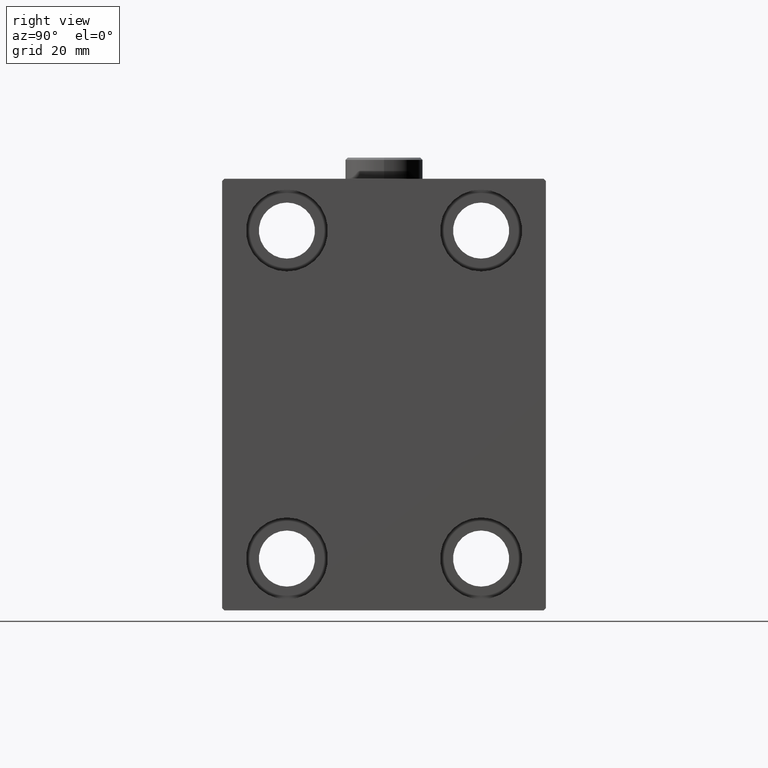
[diagram: clean part render]
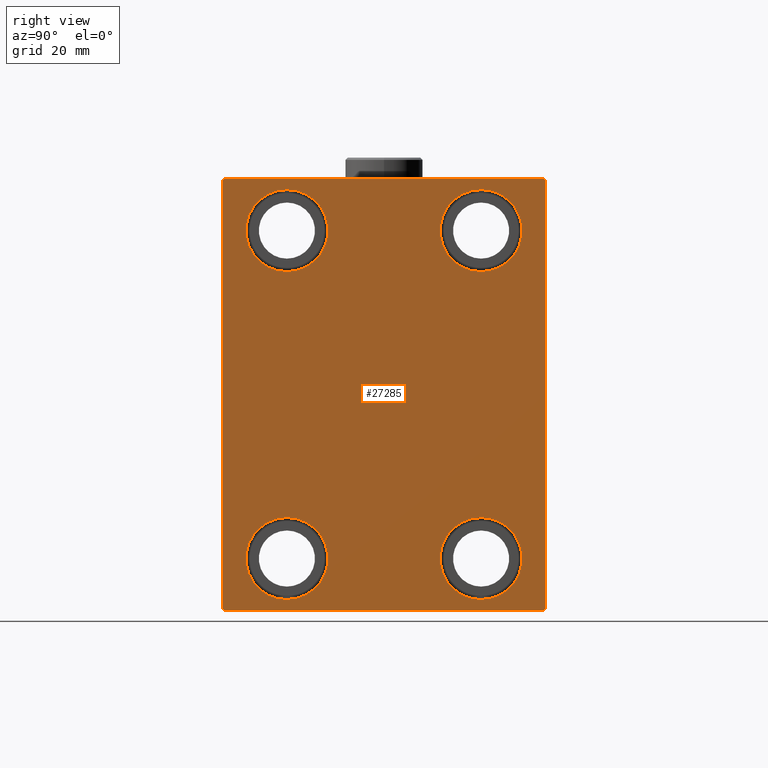
[diagram: same view with one face highlighted and labeled with its STEP entity id]
A machine part, right view. The second image highlights one B-rep face of the part: STEP entity #27285.
In plain terms, the highlighted planar face has unit normal (1, 0, 0).
Its self-contained STEP definition (entity closure, byte-faithful):
#112 = VERTEX_POINT ( 'NONE', #30659 ) ;
#560 = DIRECTION ( 'NONE',  ( -1.000000000000000000, -0.000000000000000000, -0.000000000000000000 ) ) ;
#1087 = AXIS2_PLACEMENT_3D ( 'NONE', #18456, #560, #39306 ) ;
#1279 = AXIS2_PLACEMENT_3D ( 'NONE', #21430, #35413, #22129 ) ;
#1366 = EDGE_CURVE ( 'NONE', #28657, #34508, #4952, .T. ) ;
#1602 = EDGE_LOOP ( 'NONE', ( #8763, #19736 ) ) ;
#2186 = EDGE_LOOP ( 'NONE', ( #13528, #32838, #13001, #43481, #29658, #16053, #27438, #22816 ) ) ;
#2205 = CIRCLE ( 'NONE', #12477, 9.500000000000001776 ) ;
#2224 = EDGE_CURVE ( 'NONE', #32476, #22741, #4931, .T. ) ;
#2393 = DIRECTION ( 'NONE',  ( 0.000000000000000000, 0.000000000000000000, 1.000000000000000000 ) ) ;
#2905 = DIRECTION ( 'NONE',  ( 0.000000000000000000, 0.000000000000000000, 1.000000000000000000 ) ) ;
#2932 = EDGE_CURVE ( 'NONE', #34945, #21055, #25174, .T. ) ;
#3060 = VERTEX_POINT ( 'NONE', #12746 ) ;
#3289 = AXIS2_PLACEMENT_3D ( 'NONE', #29464, #36555, #33130 ) ;
#3398 = CARTESIAN_POINT ( 'NONE',  ( 98.00000000000000000, 37.49999999999999289, 49.50000000000000000 ) ) ;
#3482 = VECTOR ( 'NONE', #42978, 1000.000000000000000 ) ;
#4188 = FACE_BOUND ( 'NONE', #23845, .T. ) ;
#4430 = DIRECTION ( 'NONE',  ( -0.000000000000000000, 0.7071067811865474617, 0.7071067811865474617 ) ) ;
#4711 = CARTESIAN_POINT ( 'NONE',  ( 98.00000000000000000, -22.49999999999999645, 37.99999999999999289 ) ) ;
#4931 = LINE ( 'NONE', #35647, #3482 ) ;
#4952 = CIRCLE ( 'NONE', #1279, 9.500000000000001776 ) ;
#5554 = CARTESIAN_POINT ( 'NONE',  ( 98.00000000000000000, -37.50000000000000711, -49.49999999999999289 ) ) ;
#7367 = CARTESIAN_POINT ( 'NONE',  ( 98.00000000000000000, 37.49999999999999289, 50.00000000000000711 ) ) ;
#7510 = EDGE_CURVE ( 'NONE', #33628, #39055, #29377, .T. ) ;
#7623 = CIRCLE ( 'NONE', #13468, 9.500000000000001776 ) ;
#7625 = FACE_OUTER_BOUND ( 'NONE', #2186, .T. ) ;
#7821 = EDGE_CURVE ( 'NONE', #21055, #3060, #34008, .T. ) ;
#8126 = CIRCLE ( 'NONE', #11790, 9.500000000000001776 ) ;
#8763 = ORIENTED_EDGE ( 'NONE', *, *, #43242, .T. ) ;
#9125 = DIRECTION ( 'NONE',  ( -1.000000000000000000, -0.000000000000000000, -0.000000000000000000 ) ) ;
#9237 = EDGE_CURVE ( 'NONE', #39055, #32476, #16911, .T. ) ;
#9699 = VERTEX_POINT ( 'NONE', #26675 ) ;
#9778 = CARTESIAN_POINT ( 'NONE',  ( 98.00000000000000000, -22.50000000000000711, -47.49999999999999289 ) ) ;
#11211 = ORIENTED_EDGE ( 'NONE', *, *, #1366, .T. ) ;
#11396 = EDGE_CURVE ( 'NONE', #28223, #112, #8126, .T. ) ;
#11501 = ORIENTED_EDGE ( 'NONE', *, *, #41345, .T. ) ;
#11718 = AXIS2_PLACEMENT_3D ( 'NONE', #44103, #12485, #2393 ) ;
#11790 = AXIS2_PLACEMENT_3D ( 'NONE', #26980, #34319, #2905 ) ;
#12477 = AXIS2_PLACEMENT_3D ( 'NONE', #4711, #18685, #42279 ) ;
#12485 = DIRECTION ( 'NONE',  ( -1.000000000000000000, -0.000000000000000000, -0.000000000000000000 ) ) ;
#12746 = CARTESIAN_POINT ( 'NONE',  ( 98.00000000000000000, 36.99999999999999289, 50.00000000000000711 ) ) ;
#13001 = ORIENTED_EDGE ( 'NONE', *, *, #7510, .T. ) ;
#13468 = AXIS2_PLACEMENT_3D ( 'NONE', #26325, #40298, #21354 ) ;
#13528 = ORIENTED_EDGE ( 'NONE', *, *, #21857, .T. ) ;
#14256 = FACE_BOUND ( 'NONE', #1602, .T. ) ;
#14281 = VECTOR ( 'NONE', #25760, 1000.000000000000114 ) ;
#15342 = ORIENTED_EDGE ( 'NONE', *, *, #31131, .T. ) ;
#15997 = CARTESIAN_POINT ( 'NONE',  ( 98.00000000000000000, -22.50000000000000711, -37.99999999999999289 ) ) ;
#16053 = ORIENTED_EDGE ( 'NONE', *, *, #27640, .T. ) ;
#16572 = DIRECTION ( 'NONE',  ( -0.000000000000000000, -0.7071067811865425767, 0.7071067811865525687 ) ) ;
#16911 = LINE ( 'NONE', #17356, #30752 ) ;
#17356 = CARTESIAN_POINT ( 'NONE',  ( 98.00000000000000000, -43.50000000000000000, -43.50000000000000000 ) ) ;
#17982 = CARTESIAN_POINT ( 'NONE',  ( 98.00000000000000000, -36.99999999999999289, -50.00000000000000711 ) ) ;
#18159 = DIRECTION ( 'NONE',  ( 0.000000000000000000, 0.000000000000000000, -1.000000000000000000 ) ) ;
#18456 = CARTESIAN_POINT ( 'NONE',  ( 98.00000000000000000, 22.50000000000000355, 37.99999999999999289 ) ) ;
#18685 = DIRECTION ( 'NONE',  ( -1.000000000000000000, -0.000000000000000000, -0.000000000000000000 ) ) ;
#18788 = VECTOR ( 'NONE', #4430, 1000.000000000000114 ) ;
#19260 = EDGE_CURVE ( 'NONE', #26778, #9699, #30364, .T. ) ;
#19388 = EDGE_CURVE ( 'NONE', #41715, #21252, #35544, .T. ) ;
#19736 = ORIENTED_EDGE ( 'NONE', *, *, #11396, .T. ) ;
#19762 = EDGE_CURVE ( 'NONE', #29072, #33628, #36942, .T. ) ;
#21055 = VERTEX_POINT ( 'NONE', #3398 ) ;
#21141 = FACE_BOUND ( 'NONE', #21319, .T. ) ;
#21252 = VERTEX_POINT ( 'NONE', #9778 ) ;
#21319 = EDGE_LOOP ( 'NONE', ( #11211, #42159 ) ) ;
#21354 = DIRECTION ( 'NONE',  ( 0.000000000000000000, 0.000000000000000000, 1.000000000000000000 ) ) ;
#21430 = CARTESIAN_POINT ( 'NONE',  ( 98.00000000000000000, 22.49999999999999645, -37.99999999999999289 ) ) ;
#21727 = CARTESIAN_POINT ( 'NONE',  ( 98.00000000000000000, 37.50000000000000711, -50.00000000000000000 ) ) ;
#21857 = EDGE_CURVE ( 'NONE', #3060, #29072, #33426, .T. ) ;
#21893 = EDGE_LOOP ( 'NONE', ( #30067, #11501 ) ) ;
#21911 = EDGE_CURVE ( 'NONE', #34508, #28657, #7623, .T. ) ;
#22129 = DIRECTION ( 'NONE',  ( 0.000000000000000000, 0.000000000000000000, 1.000000000000000000 ) ) ;
#22530 = CARTESIAN_POINT ( 'NONE',  ( 98.00000000000000000, -43.49999999999998579, 43.49999999999998579 ) ) ;
#22741 = VERTEX_POINT ( 'NONE', #44554 ) ;
#22816 = ORIENTED_EDGE ( 'NONE', *, *, #7821, .T. ) ;
#23198 = CARTESIAN_POINT ( 'NONE',  ( 98.00000000000000000, -37.50000000000000711, 49.49999999999997868 ) ) ;
#23845 = EDGE_LOOP ( 'NONE', ( #15342, #41751 ) ) ;
#24158 = CIRCLE ( 'NONE', #11718, 9.500000000000001776 ) ;
#25174 = LINE ( 'NONE', #21727, #32842 ) ;
#25519 = DIRECTION ( 'NONE',  ( 1.000000000000000000, 0.000000000000000000, 0.000000000000000000 ) ) ;
#25760 = DIRECTION ( 'NONE',  ( 0.000000000000000000, -0.7071067811865474617, -0.7071067811865474617 ) ) ;
#26325 = CARTESIAN_POINT ( 'NONE',  ( 98.00000000000000000, 22.49999999999999645, -37.99999999999999289 ) ) ;
#26639 = CARTESIAN_POINT ( 'NONE',  ( 98.00000000000000000, 22.50000000000000355, 28.49999999999998934 ) ) ;
#26675 = CARTESIAN_POINT ( 'NONE',  ( 98.00000000000000000, 22.50000000000000355, 47.49999999999999289 ) ) ;
#26778 = VERTEX_POINT ( 'NONE', #26639 ) ;
#26980 = CARTESIAN_POINT ( 'NONE',  ( 98.00000000000000000, -22.49999999999999645, 37.99999999999999289 ) ) ;
#27285 = ADVANCED_FACE ( 'NONE', ( #21141, #14256, #39253, #4188, #7625 ), #38552, .T. ) ;
#27352 = CARTESIAN_POINT ( 'NONE',  ( 98.00000000000000000, 43.50000000000026290, 43.49999999999965894 ) ) ;
#27438 = ORIENTED_EDGE ( 'NONE', *, *, #2932, .T. ) ;
#27640 = EDGE_CURVE ( 'NONE', #22741, #34945, #39257, .T. ) ;
#28223 = VERTEX_POINT ( 'NONE', #33686 ) ;
#28657 = VERTEX_POINT ( 'NONE', #30629 ) ;
#29072 = VERTEX_POINT ( 'NONE', #34137 ) ;
#29146 = DIRECTION ( 'NONE',  ( 0.000000000000000000, -1.000000000000000000, -1.850371707708594316E-16 ) ) ;
#29325 = CARTESIAN_POINT ( 'NONE',  ( 98.00000000000000000, 37.50000000000000711, -49.50000000000000000 ) ) ;
#29377 = LINE ( 'NONE', #43349, #38760 ) ;
#29464 = CARTESIAN_POINT ( 'NONE',  ( 98.00000000000000000, -22.50000000000000711, -37.99999999999999289 ) ) ;
#29658 = ORIENTED_EDGE ( 'NONE', *, *, #2224, .T. ) ;
#30001 = DIRECTION ( 'NONE',  ( 0.000000000000000000, 0.000000000000000000, 1.000000000000000000 ) ) ;
#30067 = ORIENTED_EDGE ( 'NONE', *, *, #19260, .T. ) ;
#30364 = CIRCLE ( 'NONE', #1087, 9.500000000000001776 ) ;
#30629 = CARTESIAN_POINT ( 'NONE',  ( 98.00000000000000000, 22.49999999999999645, -47.49999999999999289 ) ) ;
#30659 = CARTESIAN_POINT ( 'NONE',  ( 98.00000000000000000, -22.49999999999999645, 28.49999999999998934 ) ) ;
#30752 = VECTOR ( 'NONE', #31129, 1000.000000000000114 ) ;
#31129 = DIRECTION ( 'NONE',  ( -0.000000000000000000, 0.7071067811865474617, -0.7071067811865474617 ) ) ;
#31131 = EDGE_CURVE ( 'NONE', #21252, #41715, #37900, .T. ) ;
#32165 = CARTESIAN_POINT ( 'NONE',  ( 98.00000000000000000, 43.50000000000000711, -43.50000000000000711 ) ) ;
#32476 = VERTEX_POINT ( 'NONE', #17982 ) ;
#32838 = ORIENTED_EDGE ( 'NONE', *, *, #19762, .T. ) ;
#32842 = VECTOR ( 'NONE', #38920, 1000.000000000000000 ) ;
#33130 = DIRECTION ( 'NONE',  ( 0.000000000000000000, 0.000000000000000000, 1.000000000000000000 ) ) ;
#33426 = LINE ( 'NONE', #7367, #37614 ) ;
#33628 = VERTEX_POINT ( 'NONE', #23198 ) ;
#33686 = CARTESIAN_POINT ( 'NONE',  ( 98.00000000000000000, -22.49999999999999645, 47.49999999999999289 ) ) ;
#34008 = LINE ( 'NONE', #27352, #37284 ) ;
#34137 = CARTESIAN_POINT ( 'NONE',  ( 98.00000000000000000, -36.99999999999999289, 49.99999999999999289 ) ) ;
#34250 = AXIS2_PLACEMENT_3D ( 'NONE', #15997, #9125, #30001 ) ;
#34319 = DIRECTION ( 'NONE',  ( -1.000000000000000000, -0.000000000000000000, -0.000000000000000000 ) ) ;
#34508 = VERTEX_POINT ( 'NONE', #39458 ) ;
#34945 = VERTEX_POINT ( 'NONE', #29325 ) ;
#35413 = DIRECTION ( 'NONE',  ( -1.000000000000000000, -0.000000000000000000, -0.000000000000000000 ) ) ;
#35544 = CIRCLE ( 'NONE', #3289, 9.500000000000001776 ) ;
#35647 = CARTESIAN_POINT ( 'NONE',  ( 98.00000000000000000, -37.50000000000000711, -50.00000000000000711 ) ) ;
#36470 = DIRECTION ( 'NONE',  ( 0.000000000000000000, 0.000000000000000000, -1.000000000000000000 ) ) ;
#36555 = DIRECTION ( 'NONE',  ( -1.000000000000000000, -0.000000000000000000, -0.000000000000000000 ) ) ;
#36942 = LINE ( 'NONE', #22530, #14281 ) ;
#37284 = VECTOR ( 'NONE', #16572, 999.9999999999998863 ) ;
#37614 = VECTOR ( 'NONE', #29146, 1000.000000000000000 ) ;
#37900 = CIRCLE ( 'NONE', #34250, 9.500000000000001776 ) ;
#38552 = PLANE ( 'NONE',  #44368 ) ;
#38758 = CARTESIAN_POINT ( 'NONE',  ( 98.00000000000000000, -22.50000000000000711, -28.49999999999998934 ) ) ;
#38760 = VECTOR ( 'NONE', #36470, 1000.000000000000000 ) ;
#38794 = CARTESIAN_POINT ( 'NONE',  ( 98.00000000000000000, 0.000000000000000000, 0.000000000000000000 ) ) ;
#38920 = DIRECTION ( 'NONE',  ( 0.000000000000000000, -1.387778780781445676E-16, 1.000000000000000000 ) ) ;
#39055 = VERTEX_POINT ( 'NONE', #5554 ) ;
#39253 = FACE_BOUND ( 'NONE', #21893, .T. ) ;
#39257 = LINE ( 'NONE', #32165, #18788 ) ;
#39306 = DIRECTION ( 'NONE',  ( 0.000000000000000000, 0.000000000000000000, 1.000000000000000000 ) ) ;
#39458 = CARTESIAN_POINT ( 'NONE',  ( 98.00000000000000000, 22.49999999999999645, -28.49999999999998934 ) ) ;
#40298 = DIRECTION ( 'NONE',  ( -1.000000000000000000, -0.000000000000000000, -0.000000000000000000 ) ) ;
#41345 = EDGE_CURVE ( 'NONE', #9699, #26778, #24158, .T. ) ;
#41715 = VERTEX_POINT ( 'NONE', #38758 ) ;
#41751 = ORIENTED_EDGE ( 'NONE', *, *, #19388, .T. ) ;
#42159 = ORIENTED_EDGE ( 'NONE', *, *, #21911, .T. ) ;
#42279 = DIRECTION ( 'NONE',  ( 0.000000000000000000, 0.000000000000000000, 1.000000000000000000 ) ) ;
#42978 = DIRECTION ( 'NONE',  ( 0.000000000000000000, 1.000000000000000000, 9.251858538542970348E-17 ) ) ;
#43242 = EDGE_CURVE ( 'NONE', #112, #28223, #2205, .T. ) ;
#43349 = CARTESIAN_POINT ( 'NONE',  ( 98.00000000000000000, -37.50000000000000711, 49.99999999999999289 ) ) ;
#43481 = ORIENTED_EDGE ( 'NONE', *, *, #9237, .T. ) ;
#44103 = CARTESIAN_POINT ( 'NONE',  ( 98.00000000000000000, 22.50000000000000355, 37.99999999999999289 ) ) ;
#44368 = AXIS2_PLACEMENT_3D ( 'NONE', #38794, #25519, #18159 ) ;
#44554 = CARTESIAN_POINT ( 'NONE',  ( 98.00000000000000000, 37.00000000000000711, -50.00000000000000000 ) ) ;